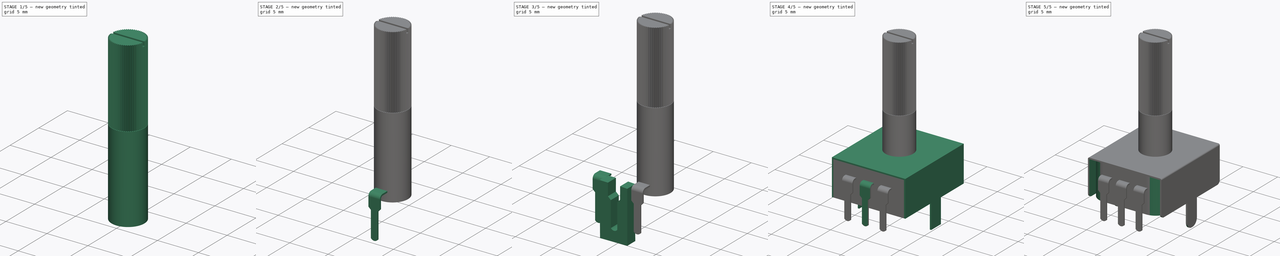
[diagram: build sequence overview — one tinted view per stage of 5, left to right]
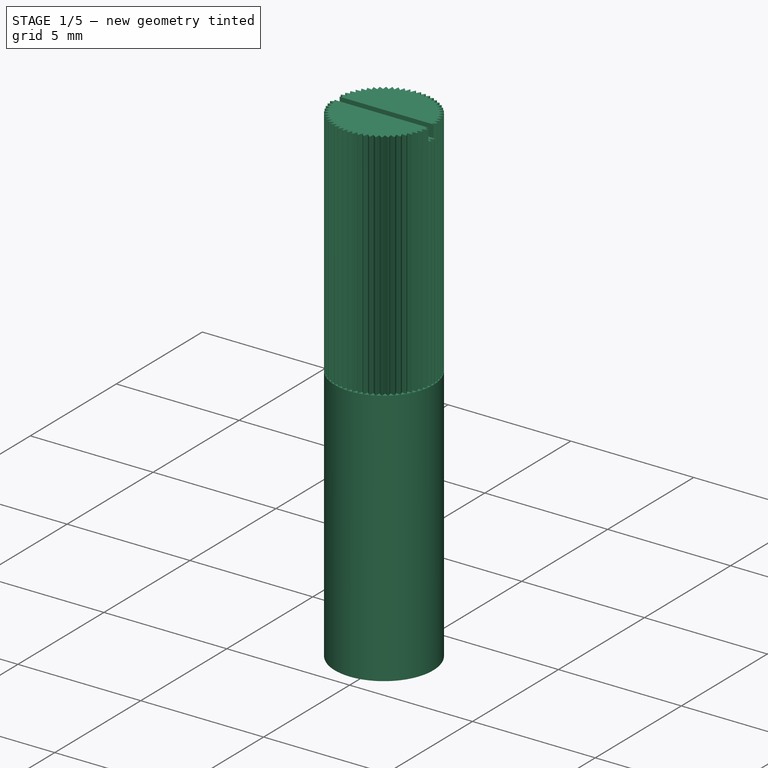
[diagram: stage 1 of 5 — iso view after this stage's code; geometry added in this stage tinted green]
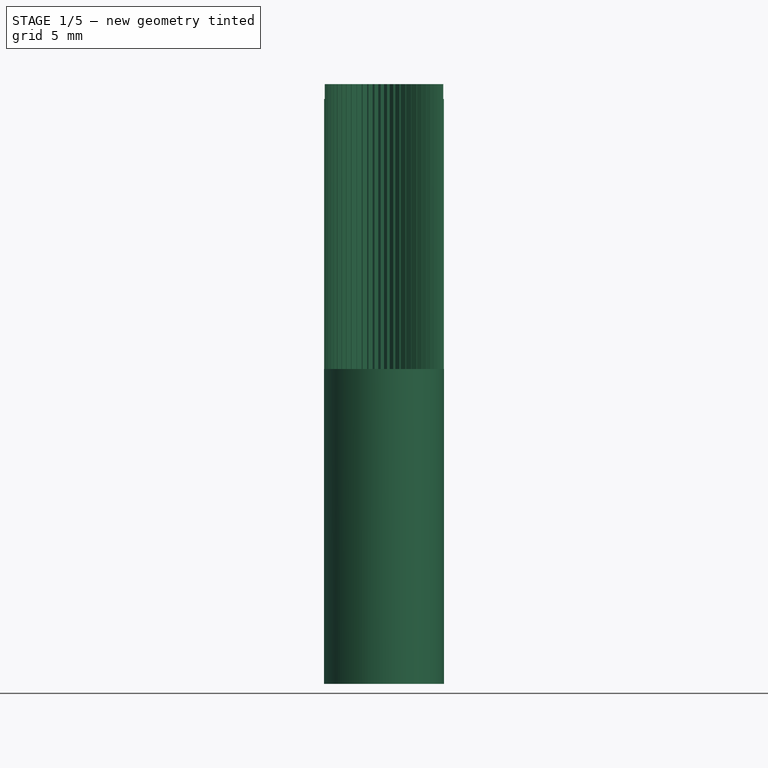
[diagram: stage 1 of 5 — front view after this stage's code; geometry added in this stage tinted green]
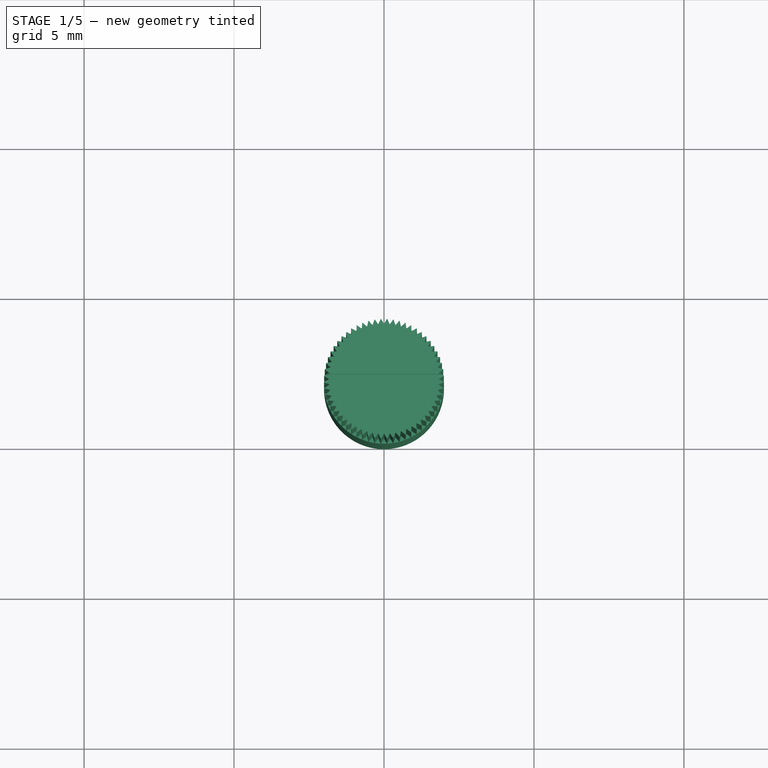
[diagram: stage 1 of 5 — top view after this stage's code; geometry added in this stage tinted green]
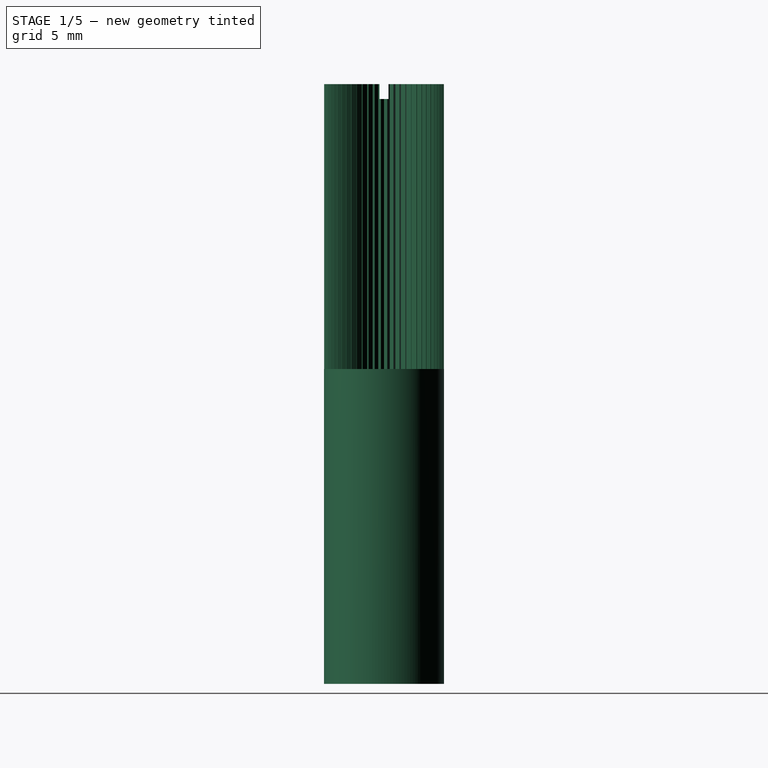
[diagram: stage 1 of 5 — right view after this stage's code; geometry added in this stage tinted green]
FCSTD DOCUMENT  (FreeCAD 0.14R3700 (Git))
Label: POT_SR_PASIVES_R9011
License: CC-BY 3.0
LicenseURL: http://creativecommons.org/licenses/by/3.0/
objects: Sketcher::SketchObject×8, PartDesign::Fillet×8, PartDesign::Pad×7, Part::Feature×5, Part::Cut×4, PartDesign::Pocket×3, App::DocumentObjectGroup×1, Part::Cylinder×1, Part::FeaturePython×1
note: 47 computed .brp shape members not serialized (recipe doc carries the construction recipe); baked Part::Feature solids carry a one-line shape summary decoded from their .brp

FEATURE [Part::Cylinder] Cylinder  label="Cilindro"
  Angle = 360
  Height = 20
  Radius = 2
FEATURE [Sketcher::SketchObject] Sketch006
  Placement = pos=(0,0,10.5) rot=(0,0,1;0rad)
  sketch-geometry (3):
    g0: LineSegment StartX=-0.1 StartY=-2.00009 StartZ=0 EndX=0 EndY=-1.82688 EndZ=0
    g1: LineSegment StartX=0 StartY=-1.82688 StartZ=0 EndX=0.1 EndY=-2.00009 EndZ=0
    g2: LineSegment StartX=0.1 StartY=-2.00009 StartZ=0 EndX=-0.1 EndY=-2.00009 EndZ=0
  constraints (8):
    c: Coincident(g0,g1)
    c: Coincident(g1,g2)
    c: Coincident(g2,g0)
    c: Horizontal(g2)
    c: DistanceX(g2) = -0.2
    c: Equal(g0,g1)
    c: Equal(g1,g2)
    c: Symmetric(g0,g1,g-2)
FEATURE [PartDesign::Pad] Pad006
  Length = 10
  Length2 = 100
  Placement = pos=(0,0,10.5) rot=(0,0,1;0rad)
  Sketch = -> Sketch006
  Type = 0
FEATURE [Part::FeaturePython] Array  # Draft array (typed FeaturePython)
  Angle = 360
  ArrayType = 1
  Axis = (0,0,1)
  Base = -> Pad006
  Center = (0,0,0)
  IntervalX = (1,0,0)
  IntervalY = (0,1,0)
  IntervalZ = (0,0,1)
  NumberPolar = 60
  NumberX = 2
  NumberY = 2
  NumberZ = 1
FEATURE [Part::Cut] Cut003
  Base = -> Cylinder
  Placement = pos=(0,7,0) rot=(0,0,1;0rad)
  Tool = -> Array
FEATURE [Sketcher::SketchObject] Sketch007
  Placement = pos=(0,7,20) rot=(0,0,1;0rad)
  Support = -> Cut003 [Face2]
  sketch-geometry (4):
    g0: LineSegment StartX=-2.12516 StartY=0.15 StartZ=0 EndX=2.12516 EndY=0.15 EndZ=0
    g1: LineSegment StartX=2.12516 StartY=0.15 StartZ=0 EndX=2.12516 EndY=-0.15 EndZ=0
    g2: LineSegment StartX=2.12516 StartY=-0.15 StartZ=0 EndX=-2.12516 EndY=-0.15 EndZ=0
    g3: LineSegment StartX=-2.12516 StartY=-0.15 StartZ=0 EndX=-2.12516 EndY=0.15 EndZ=0
  constraints (11):
    c: Coincident(g0,g1)
    c: Coincident(g1,g2)
    c: Coincident(g2,g3)
    c: Coincident(g3,g0)
    c: Horizontal(g0)
    c: Horizontal(g2)
    c: Vertical(g1)
    c: Vertical(g3)
    c: Symmetric(g0,g0,g-2)
    c: Symmetric(g2,g0,g-1)
    c: DistanceY(g3) = 0.3
FEATURE [PartDesign::Pocket] Pocket002
  Length = 0.5
  Placement = pos=(0,7,0) rot=(0,0,1;0rad)
  Sketch = -> Sketch007
  Type = 0
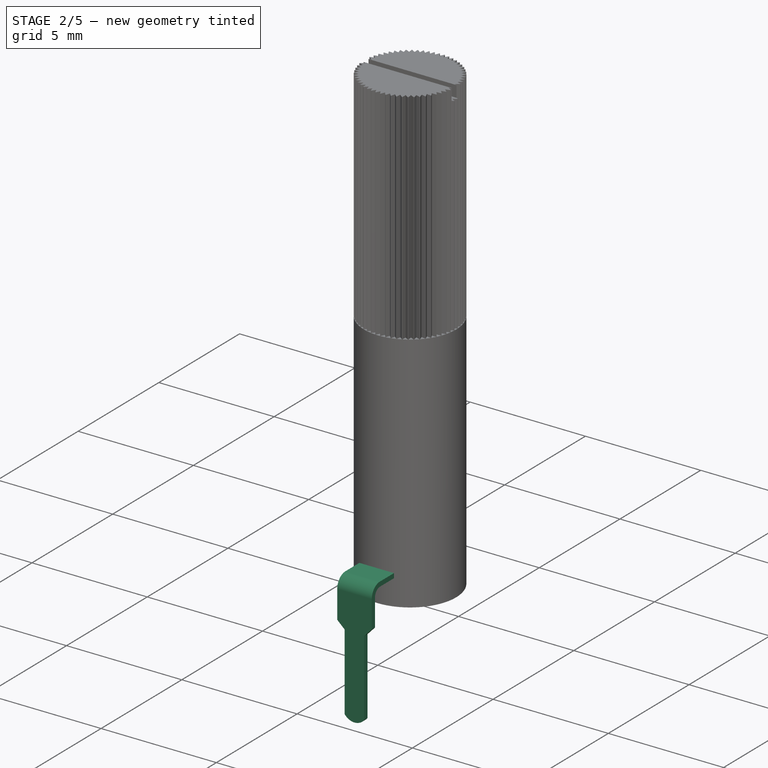
[diagram: stage 2 of 5 — iso view after this stage's code; geometry added in this stage tinted green]
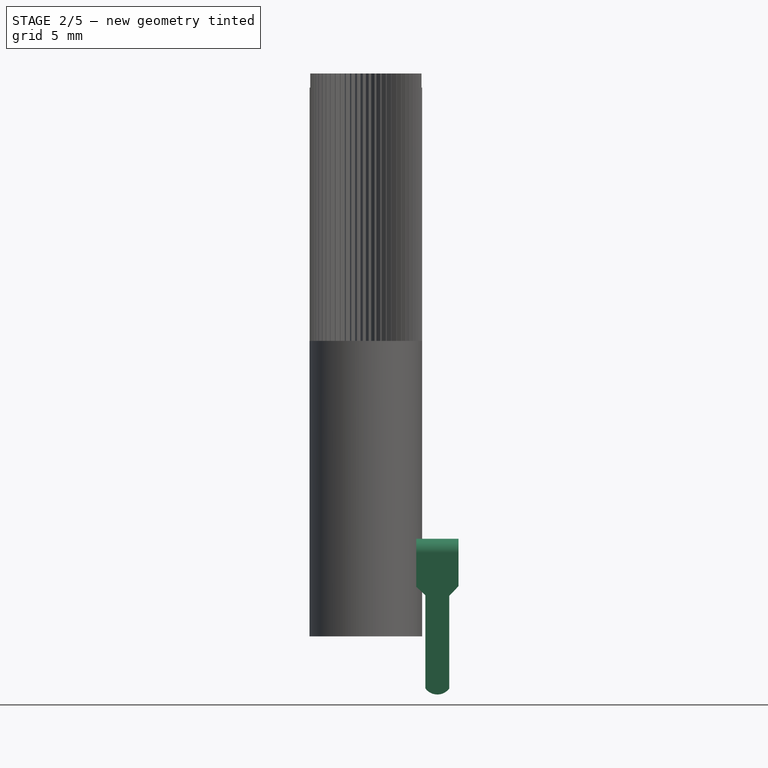
[diagram: stage 2 of 5 — front view after this stage's code; geometry added in this stage tinted green]
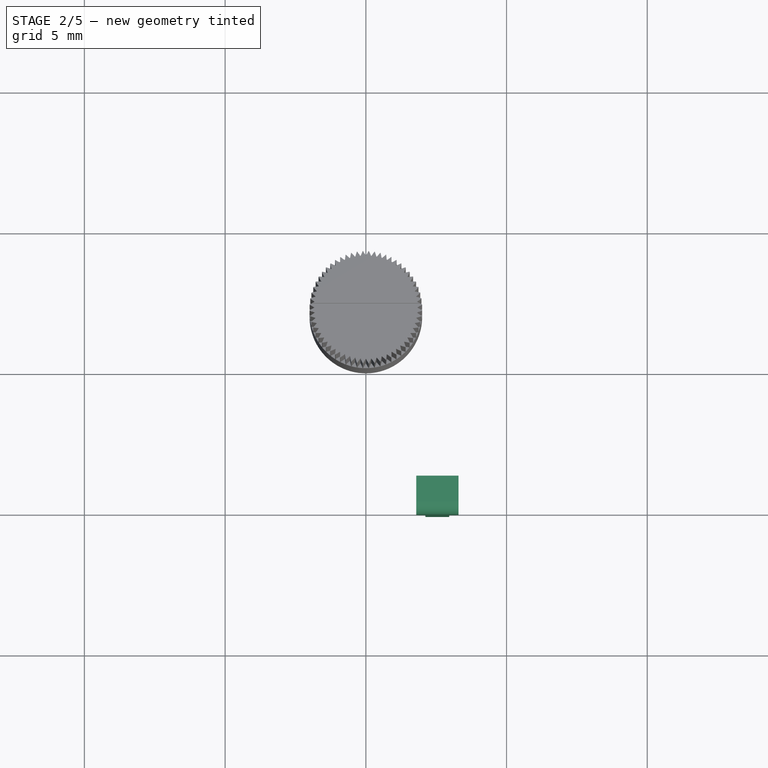
[diagram: stage 2 of 5 — top view after this stage's code; geometry added in this stage tinted green]
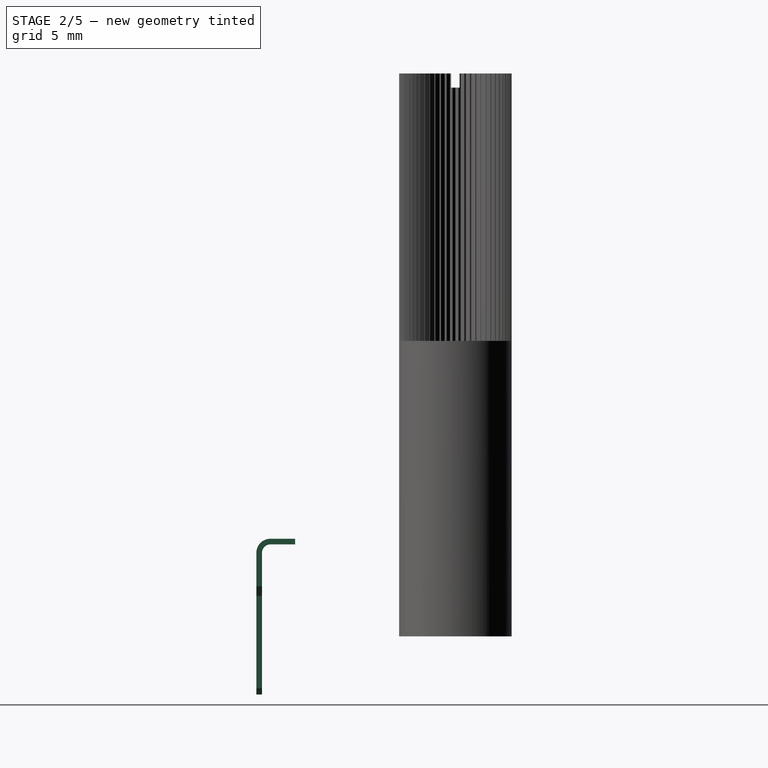
[diagram: stage 2 of 5 — right view after this stage's code; geometry added in this stage tinted green]
FEATURE [Sketcher::SketchObject] Sketch004
  Placement = pos=(0,0,0) rot=(-0.57735,0.57735,0.57735;4.18879rad)
  sketch-geometry (6):
    g0: LineSegment StartX=-1.30528 StartY=3.47076 StartZ=0 EndX=0.0697625 EndY=3.47076 EndZ=0
    g1: LineSegment StartX=0.0697625 StartY=3.47076 StartZ=0 EndX=0.0697625 EndY=-2.57429 EndZ=0
    g2: LineSegment StartX=0.0697625 StartY=-2.57429 StartZ=0 EndX=-0.130237 EndY=-2.57429 EndZ=0
    g3: LineSegment StartX=-0.130237 StartY=-2.57429 StartZ=0 EndX=-0.130237 EndY=3.27076 EndZ=0
    g4: LineSegment StartX=-0.130237 StartY=3.27076 StartZ=0 EndX=-1.30528 EndY=3.27076 EndZ=0
    g5: LineSegment StartX=-1.30528 StartY=3.27076 StartZ=0 EndX=-1.30528 EndY=3.47076 EndZ=0
  constraints (14):
    c: Coincident(g0,g1)
    c: Coincident(g1,g2)
    c: Coincident(g2,g3)
    c: Coincident(g3,g4)
    c: Coincident(g4,g5)
    c: Horizontal(g4)
    c: Horizontal(g0)
    c: Horizontal(g2)
    c: Vertical(g5)
    c: Vertical(g3)
    c: Vertical(g1)
    c: DistanceX(g2) = -0.2
    c: Coincident(g0,g5)
    c: Equal(g5,g2)
FEATURE [PartDesign::Pad] Pad002
  Length = 1.5
  Length2 = 100
  Midplane = true
  Placement = pos=(0,0,0) rot=(-0.57735,0.57735,0.57735;4.18879rad)
  Sketch = -> Sketch004
  Type = 0
FEATURE [PartDesign::Fillet] Fillet004
  Base = -> Pad002 [Edge2]
  Placement = pos=(0,0,0) rot=(-0.57735,0.57735,0.57735;4.18879rad)
  Radius = 0.5
FEATURE [PartDesign::Pad] Pad005
  Length = 1.5
  Length2 = 100
  Midplane = true
  Placement = pos=(0,0,0) rot=(1,0,0;1.5708rad)
  Sketch = -> Sketch005
  Type = 0
FEATURE [PartDesign::Fillet] Fillet007
  Base = -> Fillet004 [Edge20]
  Placement = pos=(0,0,0) rot=(0.57735,-0.57735,-0.57735;2.0944rad)
  Radius = 0.3
FEATURE [Part::Cut] Cut002
  Base = -> Fillet007
  Placement = pos=(2.54,0,0) rot=(0,0,1;0rad)
  Tool = -> Pad005
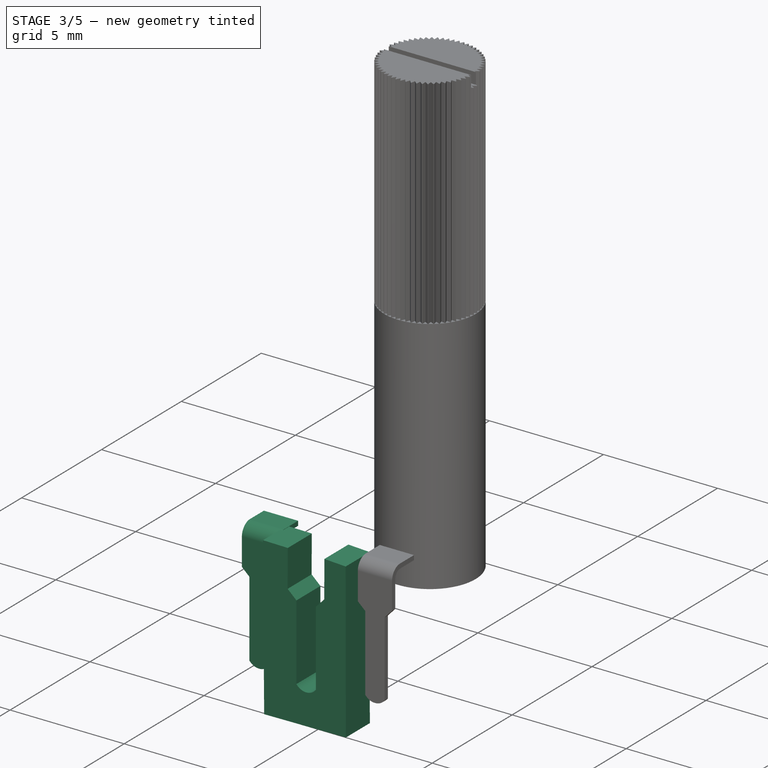
[diagram: stage 3 of 5 — iso view after this stage's code; geometry added in this stage tinted green]
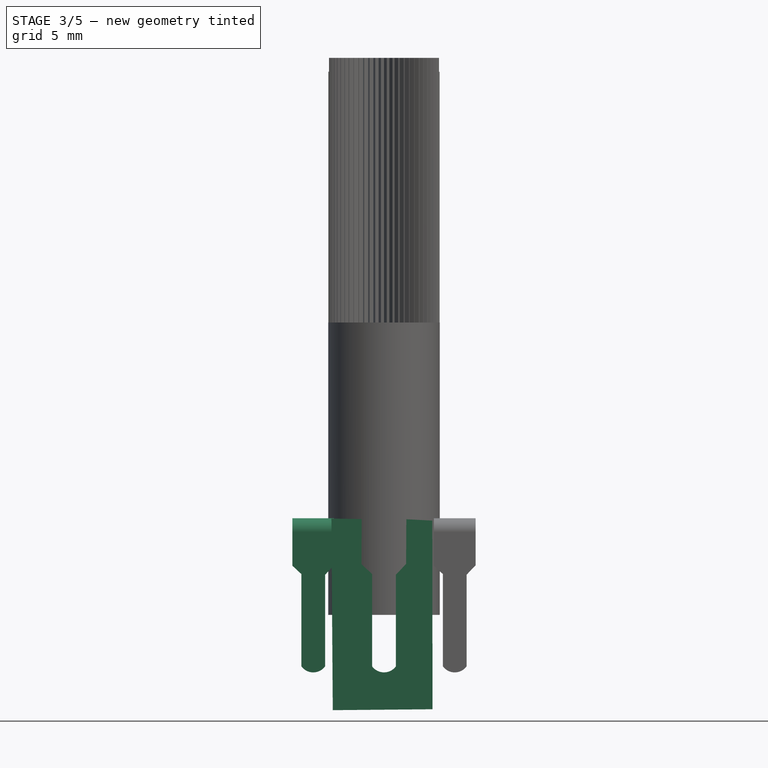
[diagram: stage 3 of 5 — front view after this stage's code; geometry added in this stage tinted green]
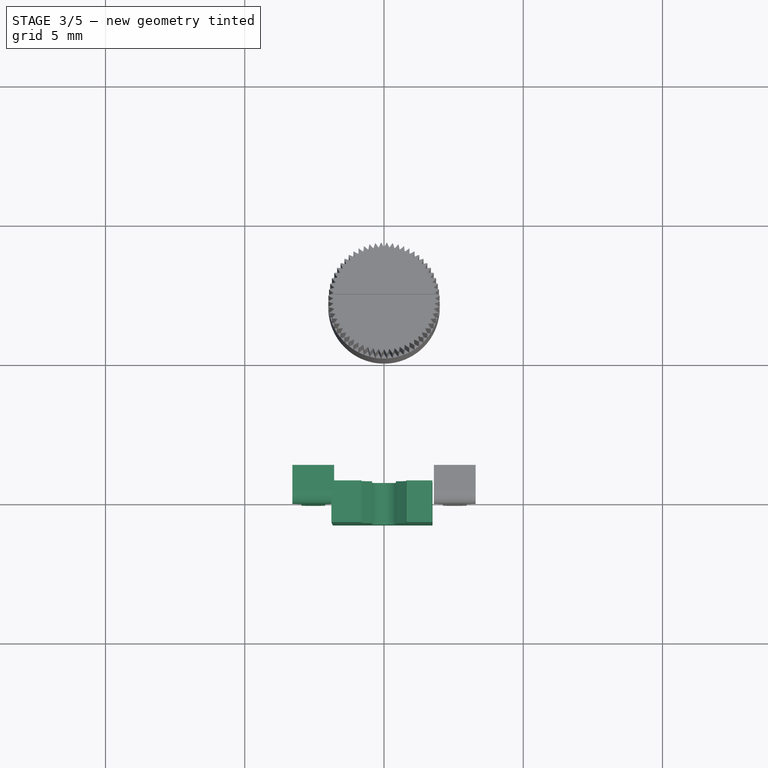
[diagram: stage 3 of 5 — top view after this stage's code; geometry added in this stage tinted green]
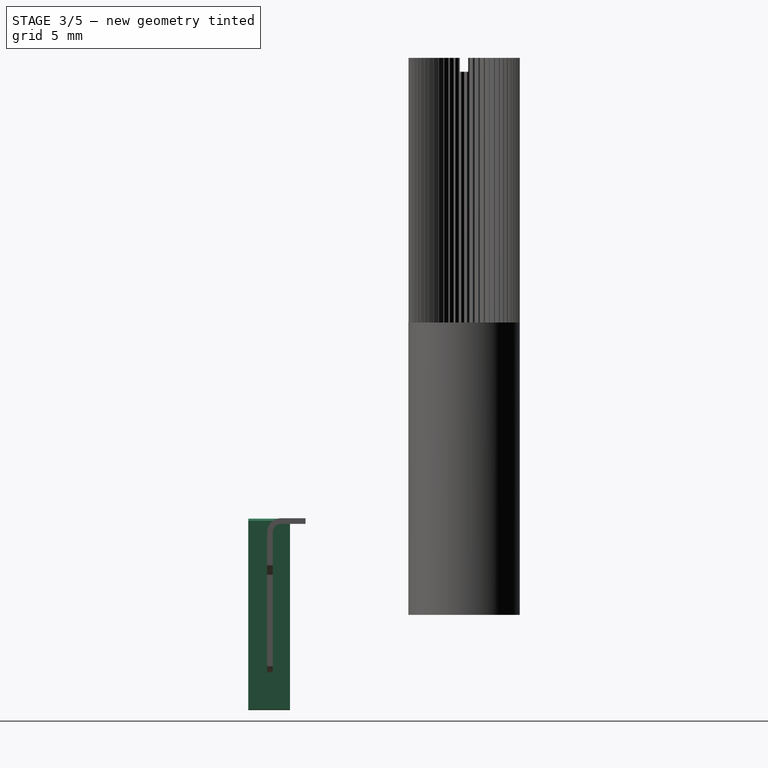
[diagram: stage 3 of 5 — right view after this stage's code; geometry added in this stage tinted green]
FEATURE [Sketcher::SketchObject] Sketch005
  Placement = pos=(0,0,0) rot=(-1,0,0;4.71239rad)
  sketch-geometry (12):
    g0: LineSegment StartX=0.802039 StartY=3.41697 StartZ=0 EndX=1.7337 EndY=3.38639 EndZ=0
    g1: LineSegment StartX=1.7337 StartY=3.38639 StartZ=0 EndX=1.7418 EndY=-3.38639 EndZ=0
    g2: LineSegment StartX=1.7418 StartY=-3.38639 StartZ=0 EndX=-1.83902 EndY=-3.4188 EndZ=0
    g3: LineSegment StartX=-1.83902 StartY=-3.4188 StartZ=0 EndX=-1.88763 EndY=3.4593 EndZ=0
    g4: LineSegment StartX=-1.88763 StartY=3.4593 StartZ=0 EndX=-0.80204 EndY=3.4431 EndZ=0
    g5: LineSegment StartX=-0.80204 StartY=3.4431 StartZ=0 EndX=-0.810141 EndY=1.82282 EndZ=0
    g6: LineSegment StartX=-0.810141 StartY=1.82282 StartZ=0 EndX=-0.425 EndY=1.46625 EndZ=0
    g7: LineSegment StartX=-0.425 StartY=1.46625 StartZ=0 EndX=-0.425 EndY=-1.84759 EndZ=0
    g8: LineSegment StartX=0.802039 StartY=3.41697 StartZ=0 EndX=0.793939 EndY=1.81289 EndZ=0
    g9: LineSegment StartX=0.793939 StartY=1.81289 StartZ=0 EndX=0.425 EndY=1.44205 EndZ=0
    g10: LineSegment StartX=0.425 StartY=1.44205 StartZ=0 EndX=0.425 EndY=-1.84759 EndZ=0
    g11: ArcOfCircle CenterX=0 CenterY=-1.5352 CenterZ=0 NormalX=0 NormalY=0 NormalZ=1 Radius=0.527458 StartAngle=3.77544 EndAngle=5.64933
  constraints (23):
    c: Coincident(g0,g1)
    c: Coincident(g1,g2)
    c: Coincident(g2,g3)
    c: Coincident(g3,g4)
    c: Coincident(g4,g5)
    c: Coincident(g5,g6)
    c: Coincident(g6,g7)
    c: Coincident(g8,g9)
    c: Coincident(g9,g10)
    c: Vertical(g7)
    c: Vertical(g10)
    c: Symmetric(g7,g10,g-2)
    c: DistanceX(g7,g10) = 0.85
    c: Coincident(g0,g8)
    c: Coincident(g7,g11)
    c: Coincident(g10,g11)
    c: Coincident(g4,g5)
    c: Coincident(g3,g4)
    c: Coincident(g5,g6)
    c: Coincident(g6,g7)
    c: Coincident(g9,g10)
    c: Coincident(g1,g2)
    c: Coincident(g2,g3)
FEATURE [PartDesign::Pad] Pad003
  Length = 1.5
  Length2 = 100
  Midplane = true
  Placement = pos=(0,0,0) rot=(-1,0,0;4.71239rad)
  Sketch = -> Sketch005
  Type = 0
FEATURE [PartDesign::Pad] Pad004
  Length = 1.5
  Length2 = 100
  Midplane = true
  Placement = pos=(0,0,0) rot=(1,0,0;1.5708rad)
  Sketch = -> Sketch005
  Type = 0
FEATURE [PartDesign::Fillet] Fillet006
  Base = -> Fillet004 [Edge20]
  Placement = pos=(0,0,0) rot=(0.57735,-0.57735,-0.57735;2.0944rad)
  Radius = 0.3
FEATURE [Part::Cut] Cut001
  Base = -> Fillet006
  Placement = pos=(-2.54,0,0) rot=(0,0,1;0rad)
  Tool = -> Pad004
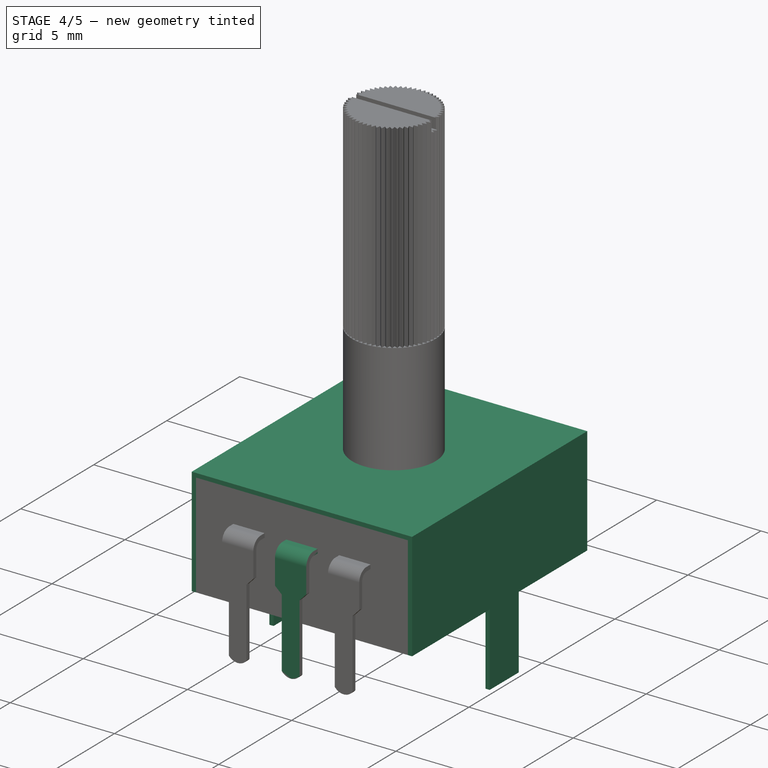
[diagram: stage 4 of 5 — iso view after this stage's code; geometry added in this stage tinted green]
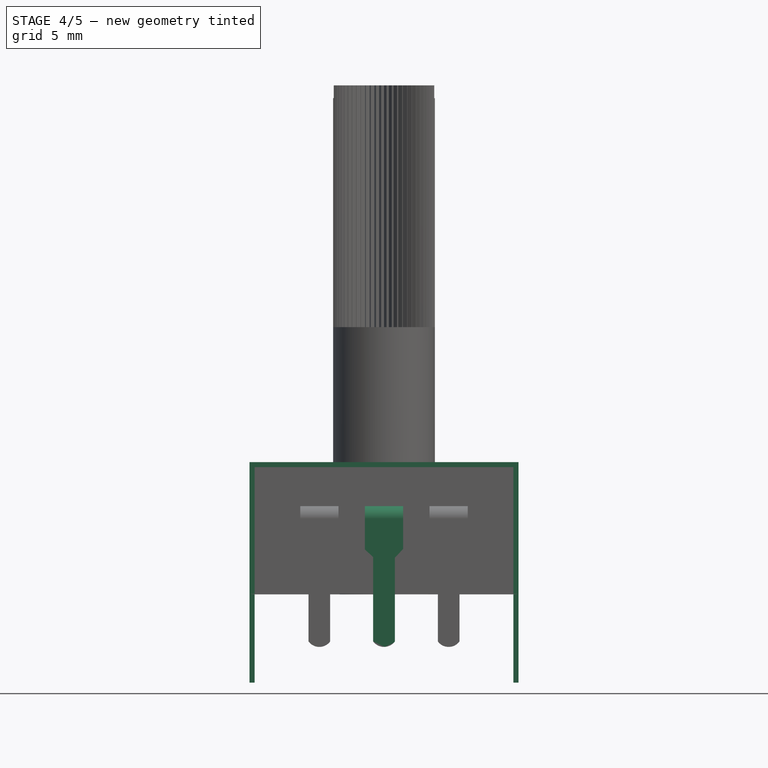
[diagram: stage 4 of 5 — front view after this stage's code; geometry added in this stage tinted green]
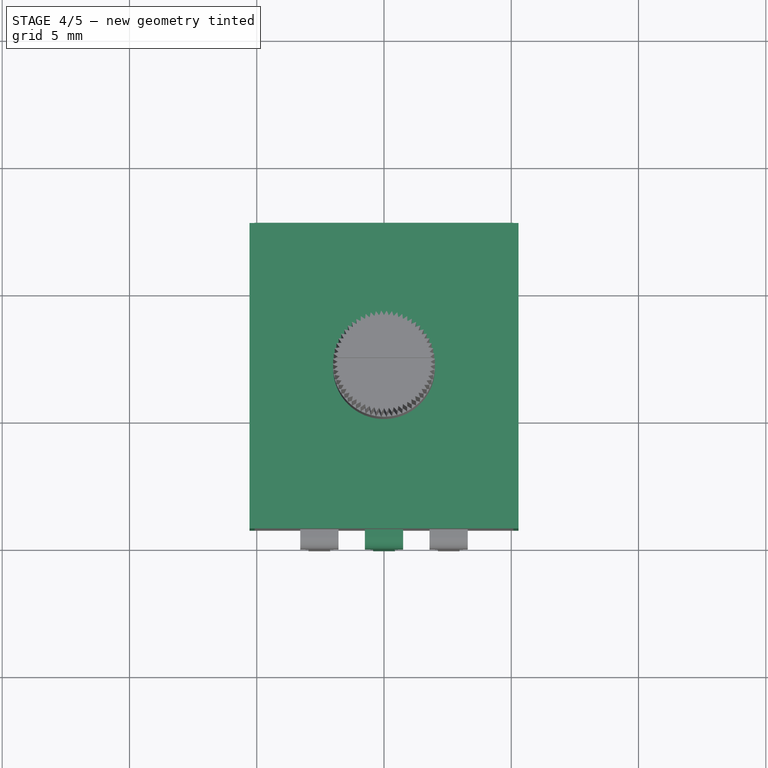
[diagram: stage 4 of 5 — top view after this stage's code; geometry added in this stage tinted green]
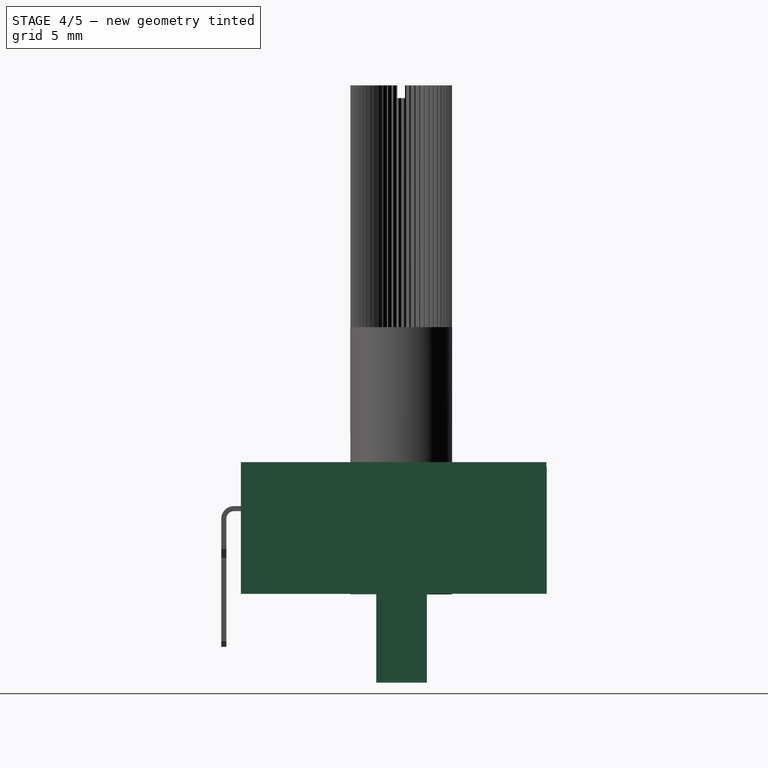
[diagram: stage 4 of 5 — right view after this stage's code; geometry added in this stage tinted green]
FEATURE [Part::Feature] Shape  label="FrontSilk"
  shape: bbox 10.31 x 12.85 x 2e-07 mm, 7 faces, 0 solids (baked)
FEATURE [Part::Feature] Shape001  label="TopPads"
  shape: bbox 13 x 9.5 x 0.01 mm, 56 faces, 5 solids (baked)
FEATURE [Part::Feature] Shape002  label="BotPads"
  shape: bbox 13 x 9.5 x 0.01 mm, 56 faces, 5 solids (baked)
FEATURE [Part::Feature] Shape004  label="PTHs"
  shape: bbox 12.21 x 8.61 x 1.58 mm, 50 faces (baked)
FEATURE [Part::Feature] Shape005002  label="Pcb"
  shape: bbox 20.8 x 22.04 x 1.58 mm, 26 faces (baked)
FEATURE [App::DocumentObjectGroup] POT_SR_PASIVES_R9011_fp
  Group = -> [Shape,Shape001,Shape002,Shape004,Shape005002]
FEATURE [Sketcher::SketchObject] Sketch
  sketch-geometry (4):
    g0: LineSegment StartX=-5.08245 StartY=12.7176 StartZ=0 EndX=5.08456 EndY=12.7176 EndZ=0
    g1: LineSegment StartX=5.08456 StartY=12.7176 StartZ=0 EndX=5.08456 EndY=0.702536 EndZ=0
    g2: LineSegment StartX=5.08456 StartY=0.702536 StartZ=0 EndX=-5.08245 EndY=0.702536 EndZ=0
    g3: LineSegment StartX=-5.08245 StartY=0.702536 StartZ=0 EndX=-5.08245 EndY=12.7176 EndZ=0
  constraints (8):
    c: Coincident(g0,g1)
    c: Coincident(g1,g2)
    c: Coincident(g2,g3)
    c: Coincident(g3,g0)
    c: Horizontal(g0)
    c: Horizontal(g2)
    c: Vertical(g1)
    c: Vertical(g3)
FEATURE [PartDesign::Pad] Pad
  Length = 5
  Length2 = 100
  Sketch = -> Sketch
  Type = 0
FEATURE [Sketcher::SketchObject] Sketch001
  ExternalGeometry = -> [Pad]
  Placement = pos=(0,0.702536,0) rot=(1,0,0;1.5708rad)
  Support = -> Pad [Face3]
  sketch-geometry (8):
    g0: LineSegment StartX=-5.28245 StartY=-3.46574 StartZ=0 EndX=-5.28245 EndY=5.2 EndZ=0
    g1: LineSegment StartX=-5.28245 StartY=5.2 StartZ=0 EndX=5.28245 EndY=5.2 EndZ=0
    g2: LineSegment StartX=5.28245 StartY=5.2 StartZ=0 EndX=5.28245 EndY=-3.46574 EndZ=0
    g3: LineSegment StartX=5.28245 StartY=-3.46574 StartZ=0 EndX=5.08245 EndY=-3.46574 EndZ=0
    g4: LineSegment StartX=5.08245 StartY=-3.46574 StartZ=0 EndX=5.08245 EndY=5 EndZ=0
    g5: LineSegment StartX=5.08245 StartY=5 StartZ=0 EndX=-5.08245 EndY=5 EndZ=0
    g6: LineSegment StartX=-5.08245 StartY=5 StartZ=0 EndX=-5.08245 EndY=-3.46574 EndZ=0
    g7: LineSegment StartX=-5.08245 StartY=-3.46574 StartZ=0 EndX=-5.28245 EndY=-3.46574 EndZ=0
  constraints (21):
    c: Coincident(g0,g1)
    c: Coincident(g1,g2)
    c: Coincident(g2,g3)
    c: Coincident(g3,g4)
    c: Coincident(g4,g5)
    c: Coincident(g5,g6)
    c: Coincident(g6,g7)
    c: Coincident(g0,g7)
    c: Symmetric(g6,g3,g-2)
    c: Horizontal(g7)
    c: Horizontal(g3)
    c: Horizontal(g5)
    c: Horizontal(g1)
    c: Vertical(g0)
    c: Vertical(g6)
    c: Vertical(g4)
    c: Vertical(g2)
    c: Equal(g7,g3)
    c: Coincident(g-3,g5)
    c: DistanceY(g5,g0) = 0.2
    c: DistanceX(g5,g0) = -0.2
FEATURE [PartDesign::Pad] Pad001
  Length = 12
  Length2 = 100
  Reversed = true
  Sketch = -> Sketch001
  Type = 0
FEATURE [Sketcher::SketchObject] Sketch002
  Placement = pos=(-5.28245,0,0) rot=(0.57735,-0.57735,-0.57735;2.0944rad)
  Support = -> Pad001 [Face10]
  sketch-geometry (9):
    g0: LineSegment StartX=-12.9708 StartY=-3.45163 StartZ=0 EndX=-12.9708 EndY=0.028366 EndZ=0
    g1: LineSegment StartX=-12.9708 StartY=0.028366 StartZ=0 EndX=-8.00621 EndY=0.028366 EndZ=0
    g2: LineSegment StartX=-8.00621 StartY=0.028366 StartZ=0 EndX=-8.00621 EndY=-3.47435 EndZ=0
    g3: LineSegment StartX=-8.00621 StartY=-3.47435 StartZ=0 EndX=-6.02019 EndY=-3.47435 EndZ=0
    g4: LineSegment StartX=-6.02019 StartY=-3.47435 StartZ=0 EndX=-6.02019 EndY=0.022642 EndZ=0
    g5: LineSegment StartX=-6.02019 StartY=0.022642 StartZ=0 EndX=-0.648442 EndY=0.022642 EndZ=0
    g6: LineSegment StartX=-0.648442 StartY=0.022642 StartZ=0 EndX=-0.648442 EndY=-5.33927 EndZ=0
    g7: LineSegment StartX=-0.648442 StartY=-5.33927 StartZ=0 EndX=-12.9708 EndY=-5.33927 EndZ=0
    g8: LineSegment StartX=-12.9708 StartY=-5.33927 StartZ=0 EndX=-12.9708 EndY=-3.45163 EndZ=0
  constraints (18):
    c: Coincident(g0,g1)
    c: Coincident(g1,g2)
    c: Coincident(g2,g3)
    c: Coincident(g3,g4)
    c: Coincident(g4,g5)
    c: Coincident(g5,g6)
    c: Coincident(g6,g7)
    c: Coincident(g7,g8)
    c: Coincident(g8,g0)
    c: Vertical(g8)
    c: Vertical(g0)
    c: Vertical(g2)
    c: Vertical(g4)
    c: Vertical(g6)
    c: Horizontal(g7)
    c: Horizontal(g1)
    c: Horizontal(g5)
    c: Horizontal(g3)
FEATURE [PartDesign::Pocket] Pocket
  Length = 14
  Sketch = -> Sketch002
  Type = 0
FEATURE [PartDesign::Fillet] Fillet005
  Base = -> Fillet004 [Edge20]
  Placement = pos=(0,0,0) rot=(-0.57735,0.57735,0.57735;4.18879rad)
  Radius = 0.3
FEATURE [Part::Cut] Cut
  Base = -> Fillet005
  Tool = -> Pad003
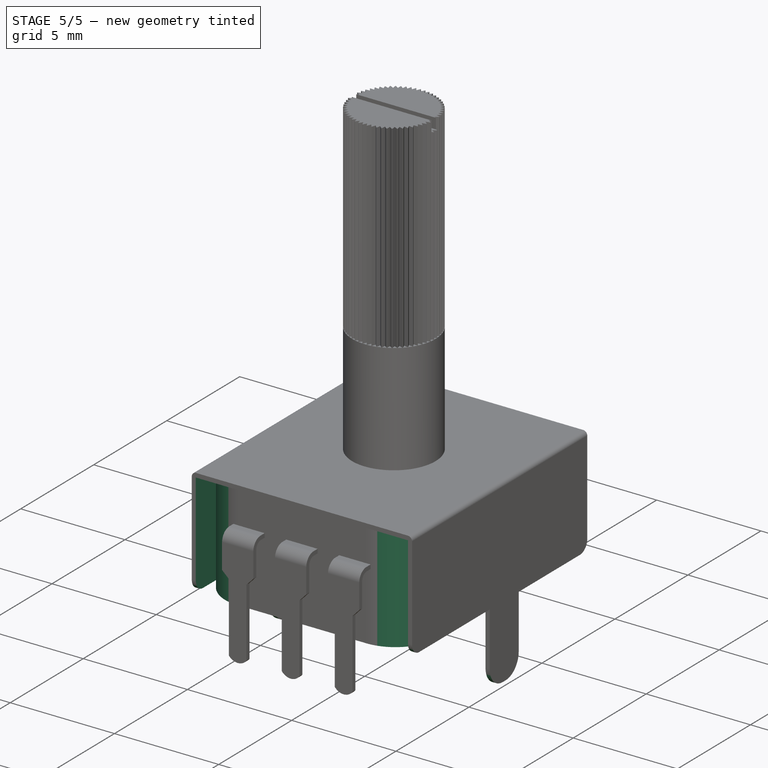
[diagram: stage 5 of 5 — iso view after this stage's code; geometry added in this stage tinted green]
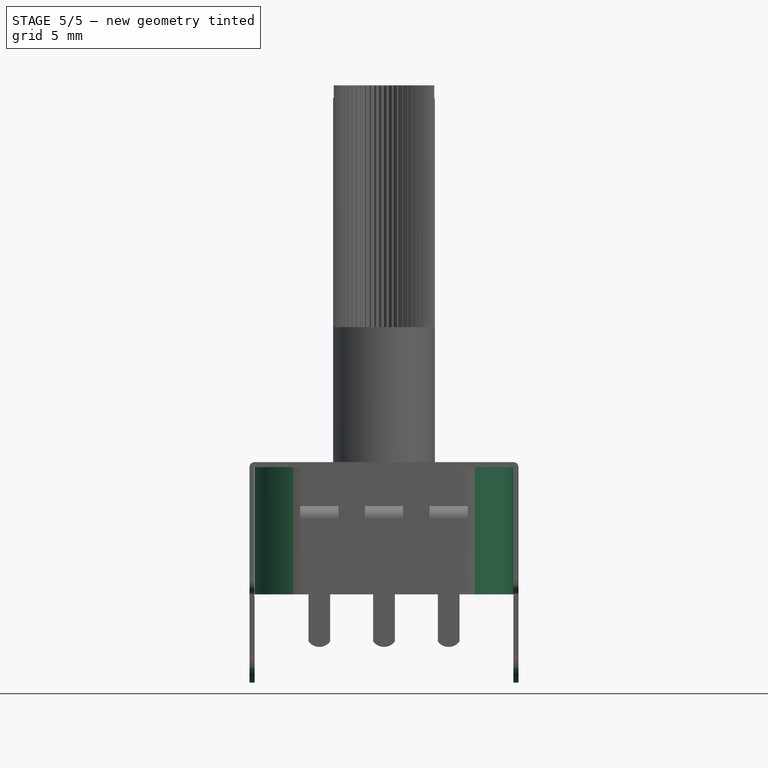
[diagram: stage 5 of 5 — front view after this stage's code; geometry added in this stage tinted green]
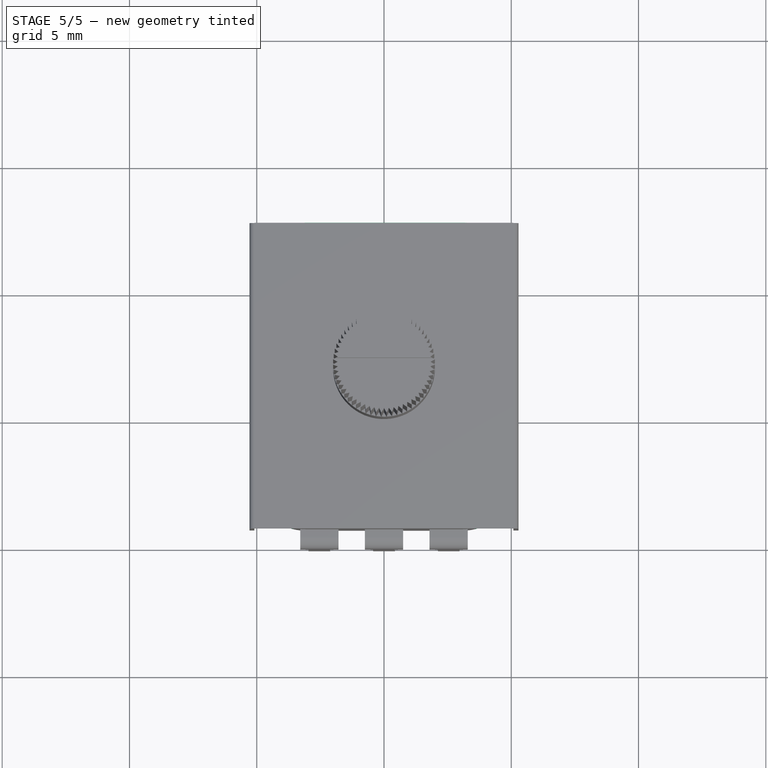
[diagram: stage 5 of 5 — top view after this stage's code; geometry added in this stage tinted green]
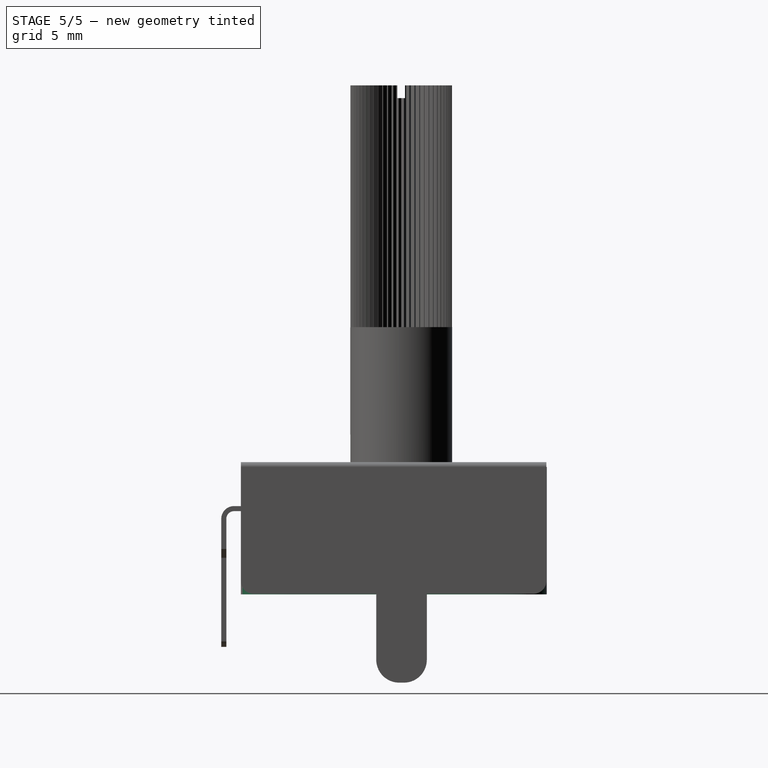
[diagram: stage 5 of 5 — right view after this stage's code; geometry added in this stage tinted green]
FEATURE [PartDesign::Fillet] Fillet
  Base = -> Pocket [Edge43,Edge25,Edge29,Edge39]
  Radius = 1
FEATURE [PartDesign::Fillet] Fillet001
  Base = -> Fillet [Edge7,Edge35]
  Radius = 0.2
FEATURE [PartDesign::Fillet] Fillet002
  Base = -> Fillet001 [Edge34,Edge27,Edge12,Edge19]
  Radius = 0.5
FEATURE [PartDesign::Fillet] Fillet003
  Base = -> Pad [Edge1,Edge2,Edge8,Edge5]
  Radius = 2
FEATURE [Sketcher::SketchObject] Sketch003
  Placement = pos=(0,0.702536,0) rot=(1,0,0;1.5708rad)
  Support = -> Fillet002 [Face14]
  sketch-geometry (4):
    g0: LineSegment StartX=5.08505 StartY=4.99955 StartZ=0 EndX=-5.0925 EndY=4.99955 EndZ=0
    g1: LineSegment StartX=-5.0925 StartY=4.99955 StartZ=0 EndX=-5.0925 EndY=-0.075514 EndZ=0
    g2: LineSegment StartX=-5.0925 StartY=-0.075514 StartZ=0 EndX=5.08505 EndY=-0.075514 EndZ=0
    g3: LineSegment StartX=5.08505 StartY=-0.075514 StartZ=0 EndX=5.08505 EndY=4.99955 EndZ=0
  constraints (8):
    c: Coincident(g0,g1)
    c: Coincident(g1,g2)
    c: Coincident(g2,g3)
    c: Coincident(g3,g0)
    c: Horizontal(g0)
    c: Horizontal(g2)
    c: Vertical(g1)
    c: Vertical(g3)
FEATURE [PartDesign::Pocket] Pocket001
  Length = 15
  Sketch = -> Sketch003
  Type = 0
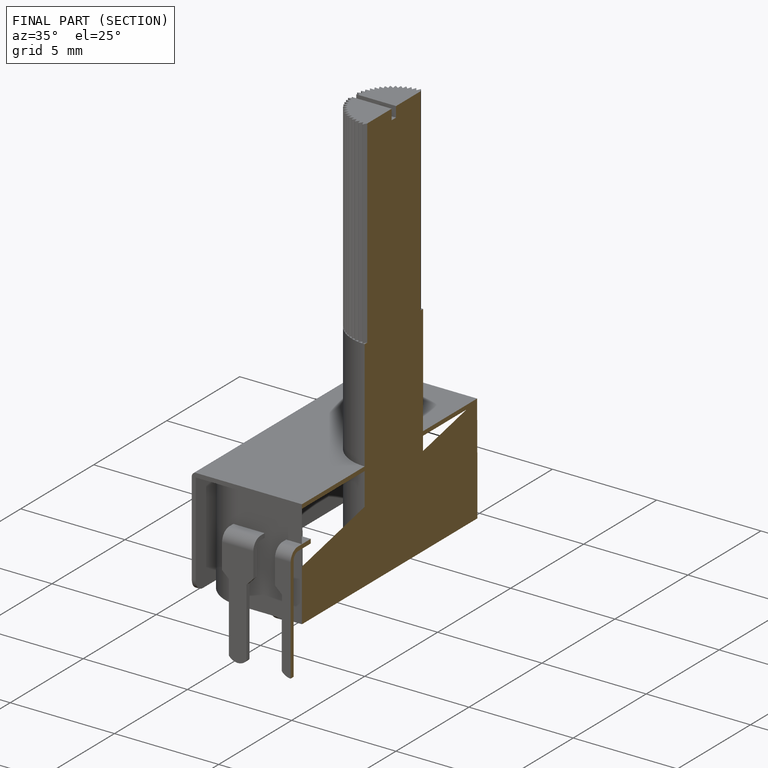
[diagram: finished part — half-section view (interior)]
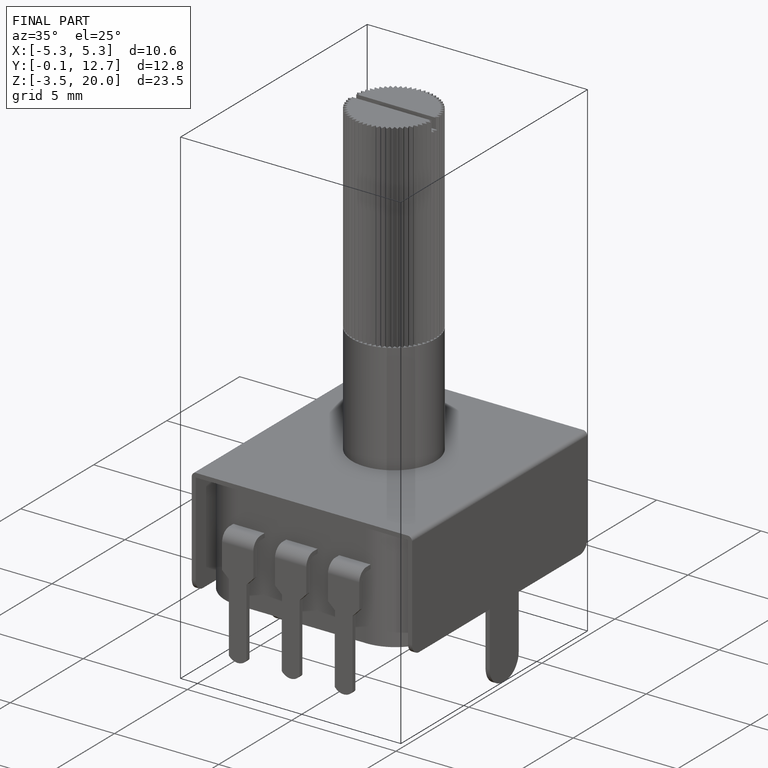
[diagram: finished part — iso view with bounding-box wireframe]
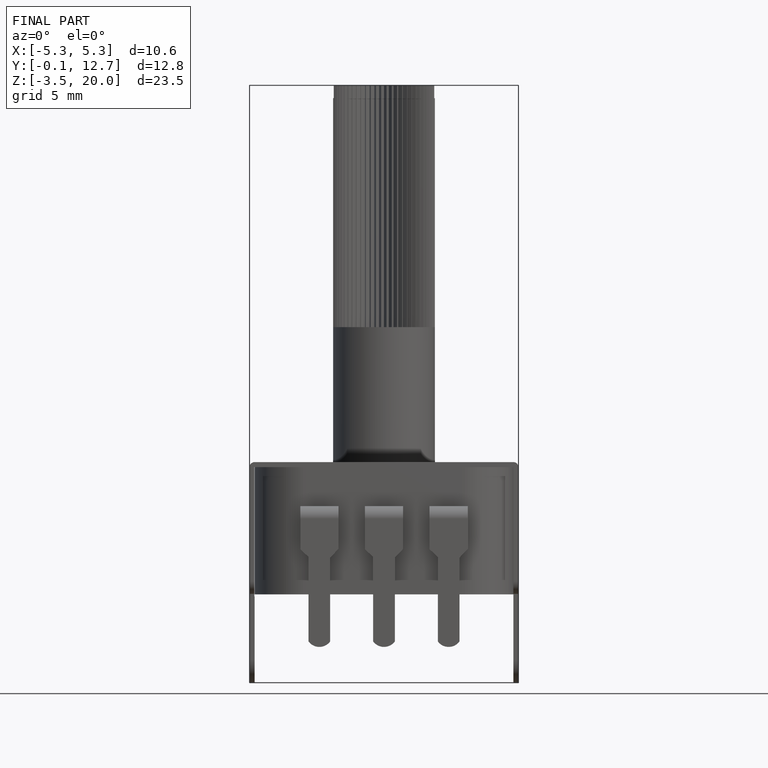
[diagram: finished part — front view with bounding-box wireframe]
